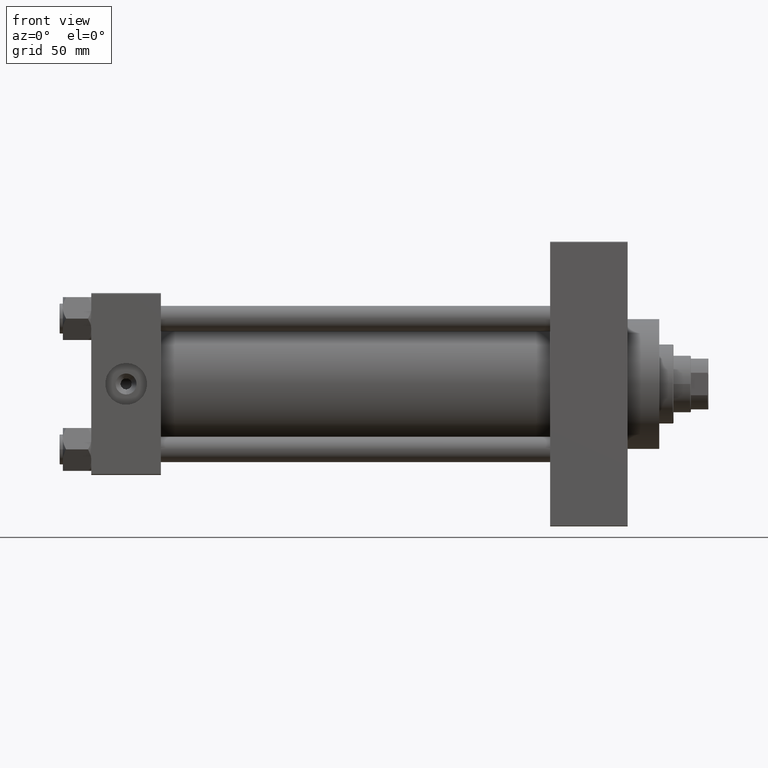
[diagram: clean part render]
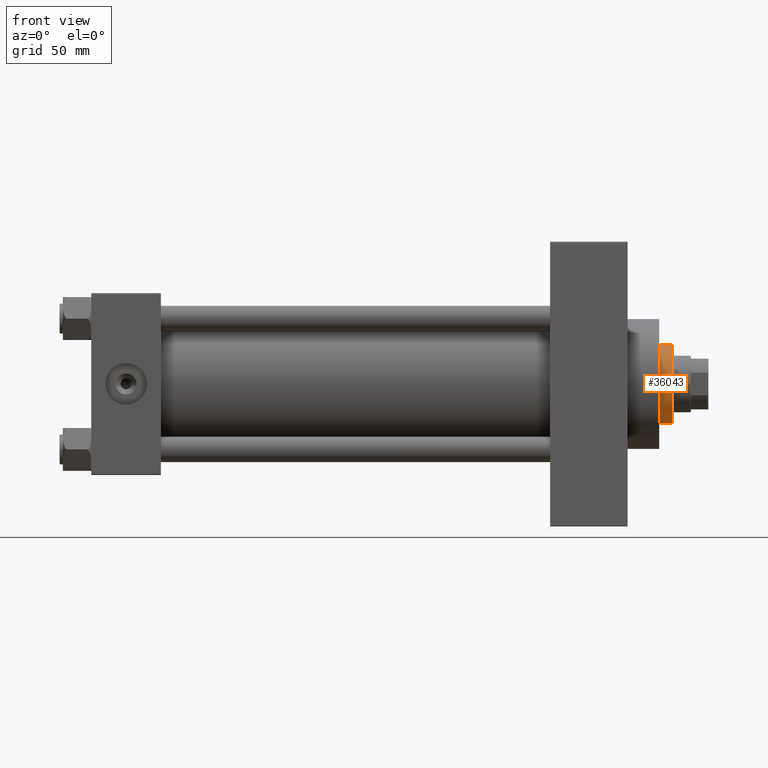
[diagram: same view with one face highlighted and labeled with its STEP entity id]
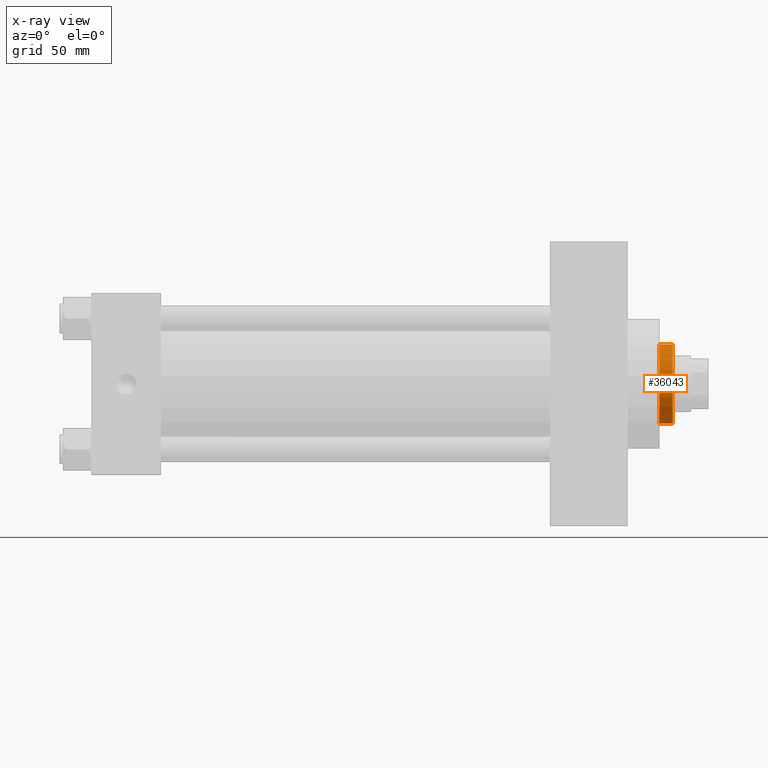
[diagram: x-ray of the same camera — body ghosted, the highlighted face saturated]
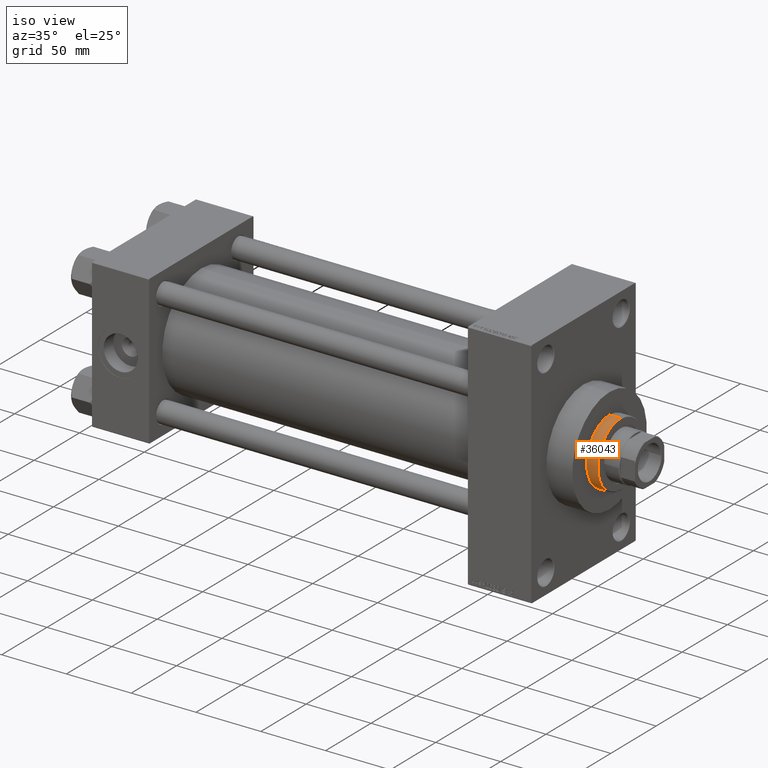
[diagram: same view with one face highlighted and labeled with its STEP entity id]
A machine part, front view. The second image highlights one B-rep face of the part: STEP entity #36043.
The next image is the same camera in x-ray: the body ghosted, the highlighted face saturated — about 0% of this face is hidden behind the body in this view.
A second angle (iso view) of the same face is appended — the face is thin or edge-on in the first view.
In plain terms, the highlighted cylindrical surface (partial cylindrical patch) has radius 25 mm, axis along (-1, 0, 0).
Its self-contained STEP definition (entity closure, byte-faithful):
#292 = CYLINDRICAL_SURFACE ( 'NONE', #26133, 25.00000000000000000 ) ;
#1517 = CARTESIAN_POINT ( 'NONE',  ( -25.00000000000000000, 0.000000000000000000, 51.75999999999996959 ) ) ;
#2530 = CARTESIAN_POINT ( 'NONE',  ( 0.000000000000000000, 0.000000000000000000, 52.25999999999999801 ) ) ;
#2918 = CARTESIAN_POINT ( 'NONE',  ( 0.000000000000000000, 0.000000000000000000, 43.25999999999999801 ) ) ;
#3147 = VERTEX_POINT ( 'NONE', #28247 ) ;
#5574 = DIRECTION ( 'NONE',  ( 1.000000000000000000, 0.000000000000000000, 0.000000000000000000 ) ) ;
#5949 = AXIS2_PLACEMENT_3D ( 'NONE', #2918, #42945, #5574 ) ;
#5953 = CARTESIAN_POINT ( 'NONE',  ( 25.00000000000000000, 3.061616997868383043E-15, 51.75999999999996959 ) ) ;
#6238 = VERTEX_POINT ( 'NONE', #1517 ) ;
#6532 = ORIENTED_EDGE ( 'NONE', *, *, #38596, .F. ) ;
#6611 = EDGE_CURVE ( 'NONE', #6238, #12077, #39514, .T. ) ;
#6627 = DIRECTION ( 'NONE',  ( -1.000000000000000000, 0.000000000000000000, 0.000000000000000000 ) ) ;
#7399 = DIRECTION ( 'NONE',  ( 1.000000000000000000, 0.000000000000000000, 0.000000000000000000 ) ) ;
#7895 = VECTOR ( 'NONE', #33153, 1000.000000000000000 ) ;
#12077 = VERTEX_POINT ( 'NONE', #5953 ) ;
#15966 = VERTEX_POINT ( 'NONE', #47697 ) ;
#17762 = EDGE_CURVE ( 'NONE', #15966, #3147, #25187, .T. ) ;
#18441 = LINE ( 'NONE', #40875, #7895 ) ;
#21288 = DIRECTION ( 'NONE',  ( -0.000000000000000000, -0.000000000000000000, -1.000000000000000000 ) ) ;
#25187 = CIRCLE ( 'NONE', #5949, 25.00000000000000000 ) ;
#26133 = AXIS2_PLACEMENT_3D ( 'NONE', #2530, #31692, #6627 ) ;
#26409 = AXIS2_PLACEMENT_3D ( 'NONE', #40213, #29568, #7399 ) ;
#28247 = CARTESIAN_POINT ( 'NONE',  ( -25.00000000000000000, 0.000000000000000000, 43.25999999999999801 ) ) ;
#29568 = DIRECTION ( 'NONE',  ( 0.000000000000000000, 0.000000000000000000, -1.000000000000000000 ) ) ;
#31076 = ORIENTED_EDGE ( 'NONE', *, *, #17762, .T. ) ;
#31692 = DIRECTION ( 'NONE',  ( -0.000000000000000000, -0.000000000000000000, -1.000000000000000000 ) ) ;
#32389 = CARTESIAN_POINT ( 'NONE',  ( -25.00000000000000000, 0.000000000000000000, 52.25999999999999801 ) ) ;
#33056 = ORIENTED_EDGE ( 'NONE', *, *, #43293, .T. ) ;
#33153 = DIRECTION ( 'NONE',  ( -0.000000000000000000, -0.000000000000000000, -1.000000000000000000 ) ) ;
#33314 = FACE_OUTER_BOUND ( 'NONE', #45208, .T. ) ;
#33905 = VECTOR ( 'NONE', #21288, 1000.000000000000000 ) ;
#36043 = ADVANCED_FACE ( 'NONE', ( #33314 ), #292, .T. ) ;
#38596 = EDGE_CURVE ( 'NONE', #6238, #3147, #39396, .T. ) ;
#39396 = LINE ( 'NONE', #32389, #33905 ) ;
#39514 = CIRCLE ( 'NONE', #26409, 25.00000000000000000 ) ;
#40213 = CARTESIAN_POINT ( 'NONE',  ( 0.000000000000000000, 0.000000000000000000, 51.75999999999996959 ) ) ;
#40875 = CARTESIAN_POINT ( 'NONE',  ( 25.00000000000000000, 3.061616997868383043E-15, 52.25999999999999801 ) ) ;
#42945 = DIRECTION ( 'NONE',  ( 0.000000000000000000, 0.000000000000000000, 1.000000000000000000 ) ) ;
#43293 = EDGE_CURVE ( 'NONE', #12077, #15966, #18441, .T. ) ;
#44627 = ORIENTED_EDGE ( 'NONE', *, *, #6611, .T. ) ;
#45208 = EDGE_LOOP ( 'NONE', ( #44627, #33056, #31076, #6532 ) ) ;
#47697 = CARTESIAN_POINT ( 'NONE',  ( 25.00000000000000000, 3.061616997868383043E-15, 43.25999999999999801 ) ) ;